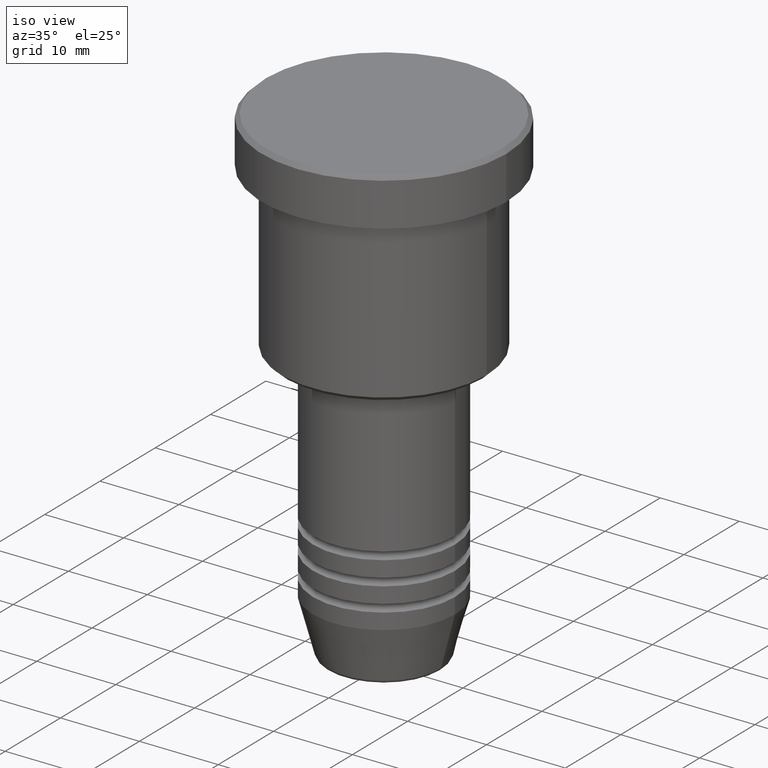
[diagram: clean part render]
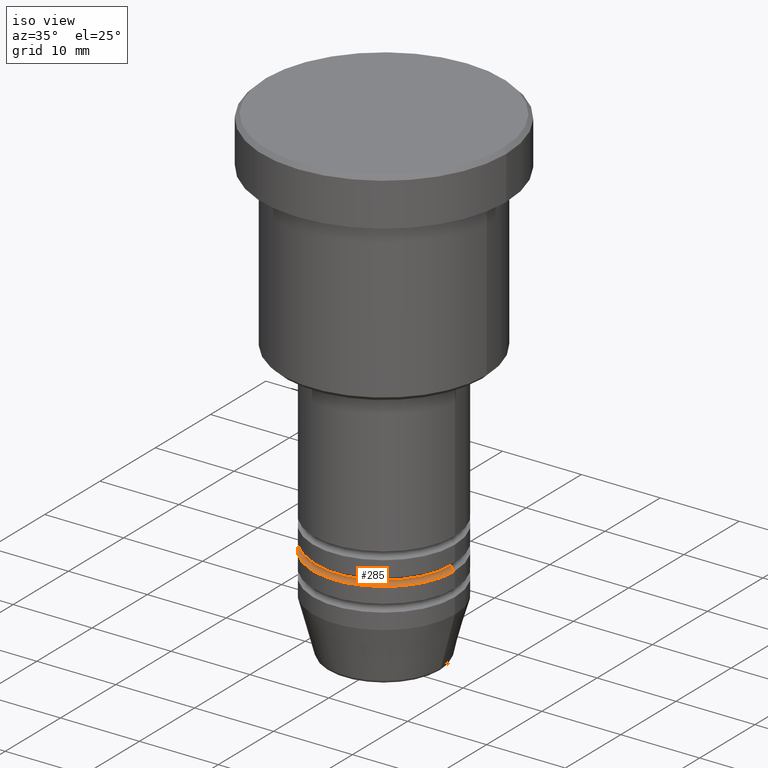
[diagram: same view with one face highlighted and labeled with its STEP entity id]
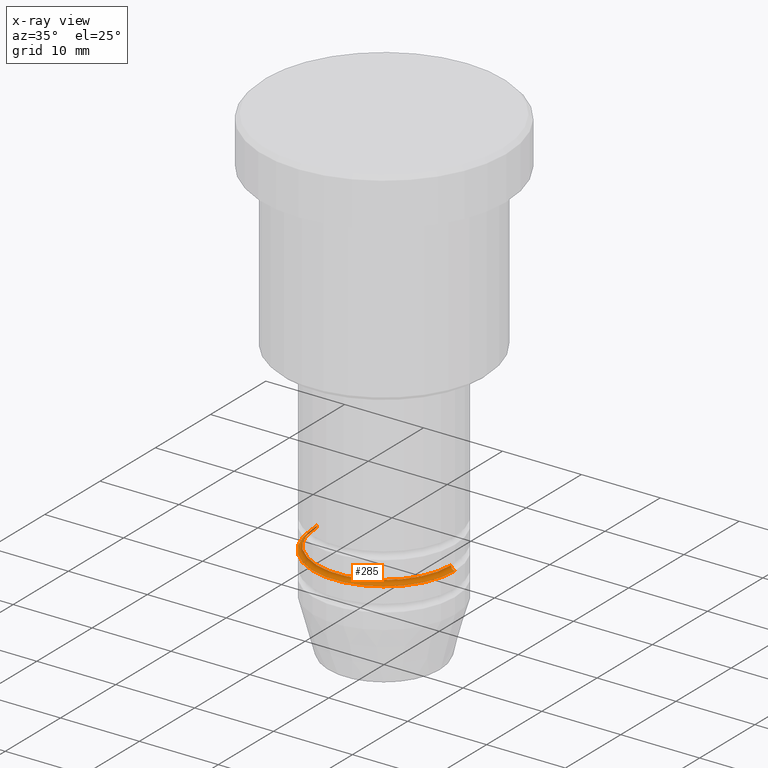
[diagram: x-ray of the same camera — body ghosted, the highlighted face saturated]
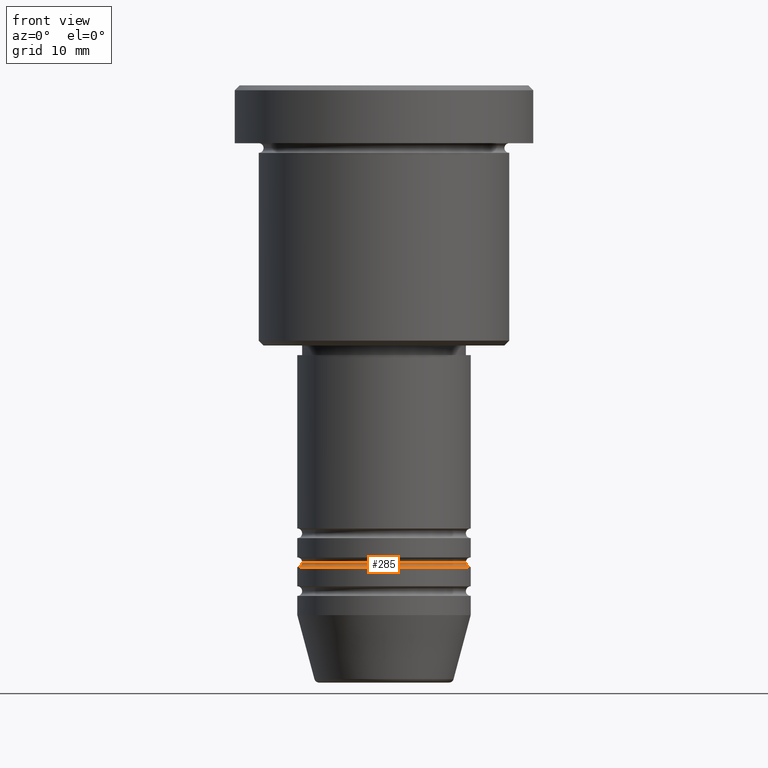
[diagram: same view with one face highlighted and labeled with its STEP entity id]
A machine part, iso view. The second image highlights one B-rep face of the part: STEP entity #285.
The next image is the same camera in x-ray: the body ghosted, the highlighted face saturated — about 1% of this face is hidden behind the body in this view.
A second angle (front view) of the same face is appended — the face is thin or edge-on in the first view.
In plain terms, the highlighted toroidal blend (fillet) surface has major radius 9 mm and minor (blend) radius 0.5 mm.
Its self-contained STEP definition (entity closure, byte-faithful):
#29 = VERTEX_POINT ( 'NONE', #528 ) ;
#30 = CARTESIAN_POINT ( 'NONE',  ( -8.500000000000000000, 1.071565949253933927E-15, -49.49999999999998579 ) ) ;
#57 = CIRCLE ( 'NONE', #209, 0.5000000000000004441 ) ;
#62 = CARTESIAN_POINT ( 'NONE',  ( 0.000000000000000000, 0.000000000000000000, -49.99999999999998579 ) ) ;
#102 = DIRECTION ( 'NONE',  ( 0.000000000000000000, 0.000000000000000000, -1.000000000000000000 ) ) ;
#116 = DIRECTION ( 'NONE',  ( 1.000000000000000000, 0.000000000000000000, 0.000000000000000000 ) ) ;
#142 = EDGE_CURVE ( 'NONE', #516, #394, #803, .T. ) ;
#201 = DIRECTION ( 'NONE',  ( -0.000000000000000000, -0.000000000000000000, 1.000000000000000000 ) ) ;
#209 = AXIS2_PLACEMENT_3D ( 'NONE', #892, #896, #460 ) ;
#218 = DIRECTION ( 'NONE',  ( -0.000000000000000000, -0.000000000000000000, 1.000000000000000000 ) ) ;
#242 = TOROIDAL_SURFACE ( 'NONE', #902, 9.000000000000001776, 0.5000000000000000000 ) ;
#244 = CARTESIAN_POINT ( 'NONE',  ( 8.500000000000000000, 0.000000000000000000, -49.49999999999998579 ) ) ;
#285 = ADVANCED_FACE ( 'NONE', ( #566 ), #242, .F. ) ;
#307 = CARTESIAN_POINT ( 'NONE',  ( 0.000000000000000000, 0.000000000000000000, -49.49999999999998579 ) ) ;
#394 = VERTEX_POINT ( 'NONE', #244 ) ;
#438 = DIRECTION ( 'NONE',  ( -0.000000000000000000, -0.000000000000000000, 1.000000000000000000 ) ) ;
#460 = DIRECTION ( 'NONE',  ( -1.000000000000000000, 1.224646799147353454E-16, 0.000000000000000000 ) ) ;
#497 = CARTESIAN_POINT ( 'NONE',  ( 9.000000000000001776, 0.000000000000000000, -49.49999999999998579 ) ) ;
#516 = VERTEX_POINT ( 'NONE', #30 ) ;
#528 = CARTESIAN_POINT ( 'NONE',  ( -9.000000000000000000, 1.102182119232617714E-15, -49.99999999999998579 ) ) ;
#566 = FACE_OUTER_BOUND ( 'NONE', #819, .T. ) ;
#568 = DIRECTION ( 'NONE',  ( 0.000000000000000000, -1.000000000000000000, 0.000000000000000000 ) ) ;
#628 = AXIS2_PLACEMENT_3D ( 'NONE', #62, #438, #1070 ) ;
#640 = ORIENTED_EDGE ( 'NONE', *, *, #1065, .T. ) ;
#711 = AXIS2_PLACEMENT_3D ( 'NONE', #976, #201, #116 ) ;
#717 = AXIS2_PLACEMENT_3D ( 'NONE', #497, #568, #102 ) ;
#721 = VERTEX_POINT ( 'NONE', #1151 ) ;
#774 = EDGE_CURVE ( 'NONE', #516, #29, #57, .T. ) ;
#802 = ORIENTED_EDGE ( 'NONE', *, *, #142, .F. ) ;
#803 = CIRCLE ( 'NONE', #711, 8.500000000000000000 ) ;
#819 = EDGE_LOOP ( 'NONE', ( #802, #1155, #640, #831 ) ) ;
#831 = ORIENTED_EDGE ( 'NONE', *, *, #927, .F. ) ;
#886 = CIRCLE ( 'NONE', #717, 0.5000000000000004441 ) ;
#892 = CARTESIAN_POINT ( 'NONE',  ( -9.000000000000001776, 1.102182119232617911E-15, -49.49999999999998579 ) ) ;
#896 = DIRECTION ( 'NONE',  ( 1.224646799147353207E-16, 1.000000000000000000, 0.000000000000000000 ) ) ;
#902 = AXIS2_PLACEMENT_3D ( 'NONE', #307, #218, #933 ) ;
#927 = EDGE_CURVE ( 'NONE', #394, #721, #886, .T. ) ;
#933 = DIRECTION ( 'NONE',  ( 1.000000000000000000, 0.000000000000000000, 0.000000000000000000 ) ) ;
#976 = CARTESIAN_POINT ( 'NONE',  ( 0.000000000000000000, 0.000000000000000000, -49.49999999999998579 ) ) ;
#1003 = CIRCLE ( 'NONE', #628, 9.000000000000000000 ) ;
#1065 = EDGE_CURVE ( 'NONE', #29, #721, #1003, .T. ) ;
#1070 = DIRECTION ( 'NONE',  ( 1.000000000000000000, 0.000000000000000000, 0.000000000000000000 ) ) ;
#1151 = CARTESIAN_POINT ( 'NONE',  ( 9.000000000000000000, 0.000000000000000000, -49.99999999999998579 ) ) ;
#1155 = ORIENTED_EDGE ( 'NONE', *, *, #774, .T. ) ;